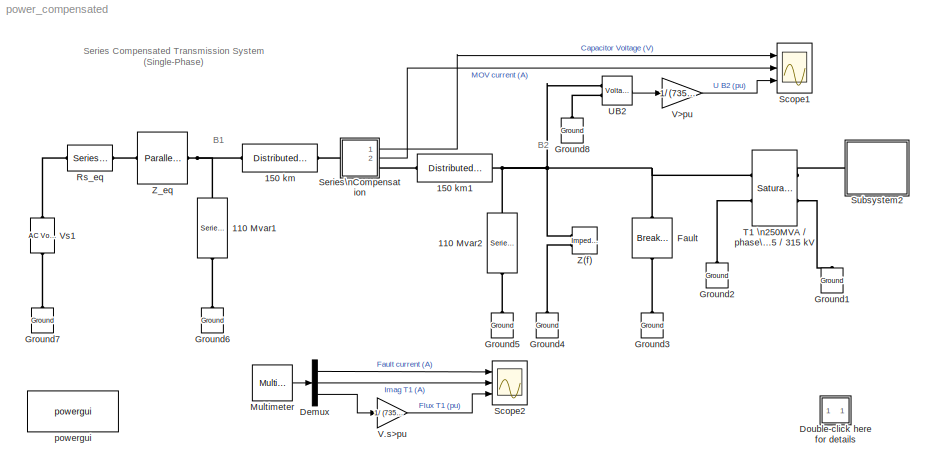
MODEL power_compensated
KIND model
BLOCK [Reference] 110 Mvar1  REF=powerlib/Elements/Series RLC Load
  ActivePower = 110e6/300
  AttributesFormatString = \\n
  CapacitivePower = 0
  InductivePower = 110e6
  LConnTagsString = a
  LeftPortType = p1
  Measurements = None
  NominalFrequency = 60
  NominalVoltage = 735000/sqrt(3)
  PhysicalDomain = powersysdomain
  Ports = [0, 0, 0, 0, 0, 1, 1]
  RConnTagsString = __new0
  RightPortType = p1
  SourceBlock = powerlib/Elements/Series RLC Load
  SourceType = Series RLC Load
  SubClassName = unknown
BLOCK [Reference] 110 Mvar2  REF=powerlib/Elements/Series RLC Load
  ActivePower = 110e6/300
  AttributesFormatString = \\n
  CapacitivePower = 0
  InductivePower = 110e6
  LConnTagsString = a
  LeftPortType = p1
  Measurements = None
  NominalFrequency = 60
  NominalVoltage = 735000/sqrt(3)
  PhysicalDomain = powersysdomain
  Ports = [0, 0, 0, 0, 0, 1, 1]
  RConnTagsString = __new0
  RightPortType = p1
  SourceBlock = powerlib/Elements/Series RLC Load
  SourceType = Series RLC Load
  SubClassName = unknown
BLOCK [Reference] 150 km  REF=powerlib/Elements/Distributed Parameters Line
  AttributesFormatString = \\n
  Capacitance = 13.41e-09
  Frequency = 60
  Inductance = 0.8674e-03
  Length = 150
  Measurements = None
  Phases = 1
  Ports = [0, 0, 0, 0, 0, 1, 1]
  Resistance = 0.011
  ShowPortLabels = on
  SourceBlock = powerlib/Elements/Distributed Parameters Line
  SourceType = Distributed Parameters Line
  x1 = [0 0 0 0; 0.0001244 0 0 0; 0.0002488 0 0 0; 0.0003733 0 0 0; 0.0004977 0 0 0; 0.0006221 0 0 0]
  x2 = [0 0 0 0; 0.0001244 0 0 0; 0.0002488 0 0 0; 0.0003733 0 0 0; 0.0004977 0 0 0; 0.0006221 0 0 0]
  x3 = [0 0 0 0; 0.0001244 0 0 0; 0.0002488 0 0 0; 0.0003733 0 0 0; 0.0004977 0 0 0; 0.0006221 0 0 0]
  x4 = [0 0 0 0; 0.0001244 0 0 0; 0.0002488 0 0 0; 0.0003733 0 0 0; 0.0004977 0 0 0; 0.0006221 0 0 0]
  x5 = 0
BLOCK [Reference] 150 km1  REF=powerlib/Elements/Distributed Parameters Line
  AttributesFormatString = \\n
  Capacitance = 13.41e-09
  Frequency = 60
  Inductance = 0.8674e-03
  Length = 150
  Measurements = None
  Phases = 1
  Ports = [0, 0, 0, 0, 0, 1, 1]
  Resistance = 0.011
  ShowPortLabels = on
  SourceBlock = powerlib/Elements/Distributed Parameters Line
  SourceType = Distributed Parameters Line
  x1 = [0 0 0 0; 0.0001244 0 0 0; 0.0002488 0 0 0; 0.0003733 0 0 0; 0.0004977 0 0 0; 0.0006221 0 0 0]
  x2 = [0 0 0 0; 0.0001244 0 0 0; 0.0002488 0 0 0; 0.0003733 0 0 0; 0.0004977 0 0 0; 0.0006221 0 0 0]
  x3 = [0 0 0 0; 0.0001244 0 0 0; 0.0002488 0 0 0; 0.0003733 0 0 0; 0.0004977 0 0 0; 0.0006221 0 0 0]
  x4 = [0 0 0 0; 0.0001244 0 0 0; 0.0002488 0 0 0; 0.0003733 0 0 0; 0.0004977 0 0 0; 0.0006221 0 0 0]
  x5 = 0
BLOCK [Demux] Demux
  Outputs = 3
  Ports = [1, 3]
BLOCK [SubSystem] Double-click here for details
  MaskDisplay = disp('?')
  MaskIconFrame = on
  MaskIconOpaque = on
  MaskIconRotate = none
  MaskIconUnits = autoscale
  MinAlgLoopOccurrences = off
  Ports = []
  RTWSystemCode = Auto
  TreatAsAtomicUnit = off
BLOCK [Reference] Fault  REF=powerlib/Elements/Breaker
  AttributesFormatString = \\n
  BreakerResistance = 0.01
  External = off
  InitialState = 0
  Measurements = Branch current
  Ports = [0, 0, 0, 0, 0, 1, 1]
  ShowPortLabels = on
  SnubberCapacitance = 0
  SnubberResistance = inf
  SourceBlock = powerlib/Elements/Breaker
  SourceType = Breaker
  SwitchingTimes = [ 3/60  9/60 ]
BLOCK [Reference] Ground1  REF=powerlib/Elements/Ground
  AttributesFormatString = \\n
  LConnTagsString = a
  LeftPortType = p1
  PhysicalDomain = powersysdomain
  Ports = [0, 0, 0, 0, 0, 1]
  RightPortType = p1
  SourceBlock = powerlib/Elements/Ground
  SourceType = Ground
  SubClassName = unknown
BLOCK [Reference] Ground2  REF=powerlib/Elements/Ground
  AttributesFormatString = \\n
  LConnTagsString = a
  LeftPortType = p1
  PhysicalDomain = powersysdomain
  Ports = [0, 0, 0, 0, 0, 1]
  RightPortType = p1
  SourceBlock = powerlib/Elements/Ground
  SourceType = Ground
  SubClassName = unknown
BLOCK [Reference] Ground3  REF=powerlib/Elements/Ground
  AttributesFormatString = \\n
  LConnTagsString = a
  LeftPortType = p1
  PhysicalDomain = powersysdomain
  Ports = [0, 0, 0, 0, 0, 1]
  RightPortType = p1
  SourceBlock = powerlib/Elements/Ground
  SourceType = Ground
  SubClassName = unknown
BLOCK [Reference] Ground4  REF=powerlib/Elements/Ground
  AttributesFormatString = \\n
  LConnTagsString = a
  LeftPortType = p1
  PhysicalDomain = powersysdomain
  Ports = [0, 0, 0, 0, 0, 1]
  RightPortType = p1
  SourceBlock = powerlib/Elements/Ground
  SourceType = Ground
  SubClassName = unknown
BLOCK [Reference] Ground5  REF=powerlib/Elements/Ground
  AttributesFormatString = \\n
  LConnTagsString = a
  LeftPortType = p1
  PhysicalDomain = powersysdomain
  Ports = [0, 0, 0, 0, 0, 1]
  RightPortType = p1
  SourceBlock = powerlib/Elements/Ground
  SourceType = Ground
  SubClassName = unknown
BLOCK [Reference] Ground6  REF=powerlib/Elements/Ground
  AttributesFormatString = \\n
  LConnTagsString = a
  LeftPortType = p1
  PhysicalDomain = powersysdomain
  Ports = [0, 0, 0, 0, 0, 1]
  RightPortType = p1
  SourceBlock = powerlib/Elements/Ground
  SourceType = Ground
  SubClassName = unknown
BLOCK [Reference] Ground7  REF=powerlib/Elements/Ground
  AttributesFormatString = \\n
  LConnTagsString = a
  LeftPortType = p1
  PhysicalDomain = powersysdomain
  Ports = [0, 0, 0, 0, 0, 1]
  RightPortType = p1
  SourceBlock = powerlib/Elements/Ground
  SourceType = Ground
  SubClassName = unknown
BLOCK [Reference] Ground8  REF=powerlib/Elements/Ground
  AttributesFormatString = \\n
  LConnTagsString = a
  LeftPortType = p1
  PhysicalDomain = powersysdomain
  Ports = [0, 0, 0, 0, 0, 1]
  RightPortType = p1
  SourceBlock = powerlib/Elements/Ground
  SourceType = Ground
  SubClassName = unknown
BLOCK [Reference] Multimeter  REF=powerlib/Measurements/Multimeter
  AttributesFormatString = \\n
  AxesSetting = [0,0.1,-100,100]
  Display = 0
  Gain = [1 1 1]
  L = 3
  OutputType = Magnitude
  PSBOutputType = 1
  PSBequivalent = 0
  PhasorSimulation = off
  Ports = [0, 1]
  SavedBlockNames = {}
  ShowPortLabels = on
  SourceBlock = powerlib/Measurements/Multimeter
  SourceType = MultimeterPSB
  Tag = PoWeRsYsTeMmEaSuReMeNt
  sel = [1 2 3]
  yselected = {'Ib: Fault','Imag: T1  250MVA // phase  735 // 315 kV','Flux: T1  250MVA // phase  735 // 315 kV'};
BLOCK [Reference] Rs_eq  REF=powerlib/Elements/Series RLC Branch
  AttributesFormatString = \\n
  Capacitance = inf
  Inductance = 0
  LConnTagsString = __new0
  LeftPortType = p1
  Measurements = None
  PhysicalDomain = powersysdomain
  Ports = [0, 0, 0, 0, 0, 1, 1]
  RConnTagsString = __new0
  Resistance = 2
  RightPortType = p1
  SourceBlock = powerlib/Elements/Series RLC Branch
  SourceType = Series RLC Branch
  SubClassName = unknown
BLOCK [Scope] Scope1
  DataFormat = Array
  DeleteFcn = simscope BlockIsBeingDestroyed
  LimitDataPoints = off
  MaxDataPoints = 100000000
  NumInputPorts = 3
  Ports = [3]
  PostSaveFcn = simscope Save
  TimeRange = 0.4
  YMax = 400000~10000~2
  YMin = -400000~-10000~-2
BLOCK [Scope] Scope2
  DataFormat = Array
  DeleteFcn = simscope BlockIsBeingDestroyed
  LimitDataPoints = off
  MaxDataPoints = 100000000
  NumInputPorts = 3
  Ports = [3]
  PostSaveFcn = simscope Save
  TimeRange = 0.4
  YMax = 10000~1000~2
  YMin = -10000~-2000~-2
  ZoomMode = xonly
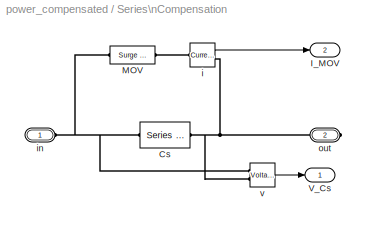
BLOCK [SubSystem] Series\nCompensation
  MaskDisplay = plot(0,0,100,100,[10 40],[50 50], [40 40],[40 60],[60 60],[40 60], [60 90],[50 50])
  MaskIconFrame = on
  MaskIconOpaque = on
  MaskIconRotate = none
  MaskIconUnits = autoscale
  MinAlgLoopOccurrences = off
  Ports = [0, 2, 0, 0, 0, 1, 1]
  RTWSystemCode = Auto
  TreatAsAtomicUnit = off
BLOCK [Reference] Series\nCompensation/Cs  REF=powerlib/Elements/Series RLC Branch
  AttributesFormatString = \\n
  Capacitance = 67.6e-6
  Inductance = 0
  LConnTagsString = __new0
  LeftPortType = p1
  Measurements = None
  PhysicalDomain = powersysdomain
  Ports = [0, 0, 0, 0, 0, 1, 1]
  RConnTagsString = __new0
  Resistance = 0
  RightPortType = p1
  SourceBlock = powerlib/Elements/Series RLC Branch
  SourceType = Series RLC Branch
  SubClassName = unknown
BLOCK [Outport] Series\nCompensation/I_MOV
  BusOutputAsStruct = off
  IconDisplay = Port number
  Port = 2
BLOCK [Reference] Series\nCompensation/MOV  REF=powerlib/Elements/Surge Arrester
  AttributesFormatString = \\n
  BreakLoop = on
  Columns = 30
  Measurements = None
  MoreParameters = off
  Ports = [0, 0, 0, 0, 0, 1, 1]
  ProtectionVoltage = 277e+03
  ReferenceCurrent = 500
  Segment1 = [.955 50]
  Segment2 = [1.0 25]
  Segment3 = [.9915 16.5]
  ShowPortLabels = on
  SourceBlock = powerlib/Elements/Surge Arrester
  SourceType = Surge Arrester
BLOCK [Outport] Series\nCompensation/V_Cs
  BusOutputAsStruct = off
  IconDisplay = Port number
BLOCK [Reference] Series\nCompensation/i  REF=powerlib/Measurements/Current Measurement
  AttributesFormatString = \\n
  OutputType = Magnitude
  PSBequivalent = 0
  PhasorSimulation = off
  Ports = [0, 1, 0, 0, 0, 1, 1]
  ShowPortLabels = on
  SourceBlock = powerlib/Measurements/Current Measurement
  SourceType = Current Measurement
  Tag = PoWeRsYsTeMmEaSuReMeNt
BLOCK [PMIOPort] Series\nCompensation/in
  Port = 1
  Side = Left
BLOCK [PMIOPort] Series\nCompensation/out
  Port = 2
  Side = Right
BLOCK [Reference] Series\nCompensation/v  REF=powerlib/Measurements/Voltage Measurement
  AttributesFormatString = \\n
  OutputType = Magnitude
  PSBequivalent = 0
  PhasorSimulation = off
  Ports = [0, 1, 0, 0, 0, 2]
  ShowPortLabels = on
  SourceBlock = powerlib/Measurements/Voltage Measurement
  SourceType = Voltage Measurement
  Tag = PoWeRsYsTeMmEaSuReMeNt
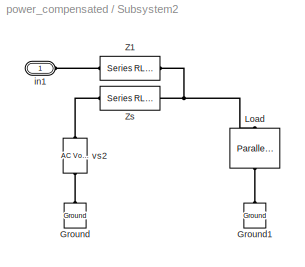
BLOCK [SubSystem] Subsystem2
  MaskDisplay = disp('315 kV\\nEquivalent')
  MaskIconFrame = on
  MaskIconOpaque = on
  MaskIconRotate = none
  MaskIconUnits = autoscale
  MinAlgLoopOccurrences = off
  Ports = [0, 0, 0, 0, 0, 1]
  RTWSystemCode = Auto
  TreatAsAtomicUnit = off
BLOCK [Reference] Subsystem2/Ground  REF=powerlib/Elements/Ground
  AttributesFormatString = \\n
  LConnTagsString = a
  LeftPortType = p1
  PhysicalDomain = powersysdomain
  Ports = [0, 0, 0, 0, 0, 1]
  RightPortType = p1
  SourceBlock = powerlib/Elements/Ground
  SourceType = Ground
  SubClassName = unknown
BLOCK [Reference] Subsystem2/Ground1  REF=powerlib/Elements/Ground
  AttributesFormatString = \\n
  LConnTagsString = a
  LeftPortType = p1
  PhysicalDomain = powersysdomain
  Ports = [0, 0, 0, 0, 0, 1]
  RightPortType = p1
  SourceBlock = powerlib/Elements/Ground
  SourceType = Ground
  SubClassName = unknown
BLOCK [Reference] Subsystem2/Load  REF=powerlib/Elements/Parallel RLC Load
  ActivePower = 200e6
  AttributesFormatString = \\n
  CapacitivePower = 50e6
  InductivePower = 0
  LConnTagsString = a
  LeftPortType = p1
  Measurements = None
  NominalFrequency = 60
  NominalVoltage = 315000/sqrt(3)
  PhysicalDomain = powersysdomain
  Ports = [0, 0, 0, 0, 0, 1, 1]
  RConnTagsString = __new0
  RightPortType = p1
  SourceBlock = powerlib/Elements/Parallel RLC Load
  SourceType = Parallel RLC Load
  SubClassName = unknown
BLOCK [Reference] Subsystem2/Z1  REF=powerlib/Elements/Series RLC Branch
  AttributesFormatString = \\n
  Capacitance = inf
  Inductance = 0.02085
  LConnTagsString = __new0
  LeftPortType = p1
  Measurements = None
  PhysicalDomain = powersysdomain
  Ports = [0, 0, 0, 0, 0, 1, 1]
  RConnTagsString = __new0
  Resistance = 0.734
  RightPortType = p1
  SourceBlock = powerlib/Elements/Series RLC Branch
  SourceType = Series RLC Branch
  SubClassName = unknown
BLOCK [Reference] Subsystem2/Zs  REF=powerlib/Elements/Series RLC Branch
  AttributesFormatString = \\n
  Capacitance = inf
  Inductance = 0.2925
  LConnTagsString = __new0
  LeftPortType = p1
  Measurements = None
  PhysicalDomain = powersysdomain
  Ports = [0, 0, 0, 0, 0, 1, 1]
  RConnTagsString = __new0
  Resistance = 11.0
  RightPortType = p1
  SourceBlock = powerlib/Elements/Series RLC Branch
  SourceType = Series RLC Branch
  SubClassName = unknown
BLOCK [PMIOPort] Subsystem2/in1
  Port = 1
  Side = Left
BLOCK [Reference] Subsystem2/vs2  REF=powerlib/Electrical\nSources/AC Voltage Source
  Amplitude = 315000/sqrt(3)*sqrt(2)
  AttributesFormatString = \\n
  Description = source block
  Frequency = 60
  Measurements = None
  Phase = 20
  Ports = [0, 0, 0, 0, 0, 1, 1]
  SampleTime = 0
  ShowPortLabels = on
  SourceBlock = powerlib/Electrical\nSources/AC Voltage Source
  SourceType = AC Voltage Source
BLOCK [Reference] T1 \n250MVA // phase\n 735 // 315 kV  REF=powerlib/Elements/Saturable Transformer
  AttributesFormatString = \\n
  CoreLoss = [1000]
  DataFile = 'hysteresis'
  Hysteresis = off
  InitialFlux = 0
  Measurements = Flux and magnetization current ( Imag )
  NominalPower = [750e6/3,60]
  Ports = [0, 0, 0, 0, 0, 2, 2]
  Saturation = [0 0 ; 0.0012 1.2; 1.0 1.45 ]
  ShowPortLabels = on
  SourceBlock = powerlib/Elements/Saturable Transformer
  SourceType = Saturable Transformer
  ThreeWindings = off
  TransfoNumber = 1
  Winding1 = [735000/sqrt(3), 0.001 ,0.15]
  Winding2 = [315000/sqrt(3), 0.001,0]
  Winding3 = [315000/sqrt(3), 0.001,0]
BLOCK [Reference] UB2  REF=powerlib/Measurements/Voltage Measurement
  AttributesFormatString = \\n
  OutputType = Magnitude
  PSBequivalent = 0
  PhasorSimulation = off
  Ports = [0, 1, 0, 0, 0, 2]
  ShowPortLabels = on
  SourceBlock = powerlib/Measurements/Voltage Measurement
  SourceType = Voltage Measurement
  Tag = PoWeRsYsTeMmEaSuReMeNt
BLOCK [Gain] V.s>pu
  Gain = 1/ (735e3/sqrt(3)*sqrt(2)/(2*pi*60))
BLOCK [Gain] V>pu
  Gain = 1/ (735e3/sqrt(3)*sqrt(2))
BLOCK [Reference] Vs1  REF=powerlib/Electrical\nSources/AC Voltage Source
  Amplitude = 735000/sqrt(3)*sqrt(2)
  AttributesFormatString = \\n
  Description = source block
  Frequency = 60
  Measurements = None
  Phase = 0
  Ports = [0, 0, 0, 0, 0, 1, 1]
  SampleTime = 0
  ShowPortLabels = on
  SourceBlock = powerlib/Electrical\nSources/AC Voltage Source
  SourceType = AC Voltage Source
BLOCK [Reference] Z(f)  REF=powerlib/Measurements/Impedance Measurement
  AttributesFormatString = \\n
  Factor = 1
  LConnTagsString = +|-
  LeftPortType = p1
  PhysicalDomain = powersysdomain
  Ports = [0, 0, 0, 0, 0, 2]
  RightPortType = p1
  SourceBlock = powerlib/Measurements/Impedance Measurement
  SourceType = Impedance Measurement
  SubClassName = unknown
BLOCK [Reference] Z_eq  REF=powerlib/Elements/Parallel RLC Branch
  AttributesFormatString = \\n
  Capacitance = 117.84e-06
  Inductance = .026525
  LConnTagsString = a
  LeftPortType = p1
  Measurements = None
  PhysicalDomain = powersysdomain
  Ports = [0, 0, 0, 0, 0, 1, 1]
  RConnTagsString = __new0
  Resistance = 180.1
  RightPortType = p1
  SourceBlock = powerlib/Elements/Parallel RLC Branch
  SourceType = Parallel RLC Branch
  SubClassName = unknown
BLOCK [Reference] powergui  REF=powerlib/powergui
  DisplayStyle = off
  Frange = 0:500
  FreqAxis = off
  MaxFrequency = 1000
  Ports = []
  Priority = 2
  RmsSteady = 1
  ShowPortLabels = on
  SourceBlock = powerlib/powergui
  SourceType = PSB option menu block
  StartTime = 0.0
  Ts = 0
  Xlog = off
  Ylog = off
  ZoomFFT = on
  cycles = 2
  display = off
  echomessages = off
  frequency = 60
  frequencyindice = 1
  frequencyindicesteady = 1
  fundamental = 60
  methode = off
  save = off
  variable = ZData
ANNOTATION (root): B1
ANNOTATION (root): B2
ANNOTATION (root): Series Compensated Transmission System\n(Single-Phase)
ANNOTATION Double-click here for details: A 735 kV, 300 km line is used to transmit power from bus B1 (735 kV equivalent system) to bus B2 (315 kV equivalent). \nIn order to simplify, only one phase of the system has been represented. \n(A detailed simulation of a three-phase series compensated network is presented in demo power_3phseries and explained in the case studies\nsection of the user's manual.)\n\nIn order to increase the transmi...<+630ch>
ANNOTATION Double-click here for details: Circuit Description
ANNOTATION Double-click here for details: Demonstration
ANNOTATION Double-click here for details: Frequency Analysis
ANNOTATION Double-click here for details: G. Sybille (Hydro-Quebec)
ANNOTATION Double-click here for details: In order to understand the transient behavior of this series-compensated network, a frequency analysis is first preformed by measuring the Impedance at node B2.\nThis measurement is performed by the Impedance Measurement block connected at node B2. \nOpen the Powergui and in the Tools menu select 'Impedance vs Frequency Mesurement'. Click on Display to compute and display the impedance for the 0 -...<+436ch>
ANNOTATION Double-click here for details: Start the simulatiom and observe waveforms on the two Scopes.\nAt t = 3 cycles, a line-to-ground fault is applied and the fault current reaches 10 kA (trace 1 of Scope2).\nDuring the fault, the MOV conducts at every half cycle (trace 2 of Scope1) and the voltage across the capacitor (trace 1 of Scope1) is limited to 263 kV.\nAt t = 9 cycles, the fault is cleared. The 15 Hz mode is clearly seen on ...<+328ch>
ANNOTATION Double-click here for details: This demonstration ilustrates frequency-domain and time-domain analysis of\na series-compensated transmission system
ANNOTATION Double-click here for details: Time Domain Simulation - Fault at Bus B2
ANNOTATION Double-click here for details: You now study the transient performance of this circuit when a 6-cycle fault is applied at node B2.\nFault is simulated by the Breaker block. Switching times are defined in the Breaker block menu (closing at t = 3 cycles and opening at t = 9 cycles).
LINE Demux:1 -> Scope2:1
LINE Demux:2 -> Scope2:2
LINE Demux:3 -> V.s>pu:1
LINE Multimeter:1 -> Demux:1
LINE Series\nCompensation/i:1 -> Series\nCompensation/I_MOV:1
LINE Series\nCompensation/v:1 -> Series\nCompensation/V_Cs:1
LINE Series\nCompensation:1 -> Scope1:1
LINE Series\nCompensation:2 -> Scope1:2
LINE UB2:1 -> V>pu:1
LINE V.s>pu:1 -> Scope2:3
LINE V>pu:1 -> Scope1:3
PLINE 110 Mvar1:LConn1 -- Ground6:LConn1
PNET net1: 110 Mvar1:RConn1 -- 150 km:LConn1 -- Z_eq:RConn1
PLINE 110 Mvar2:LConn1 -- Ground5:LConn1
PNET net2: 110 Mvar2:RConn1 -- 150 km1:RConn1 -- Fault:LConn1 -- T1 \n250MVA // phase\n 735 // 315 kV:LConn1 -- UB2:LConn1 -- Z(f):LConn1
PLINE 150 km1:LConn1 -- Series\nCompensation:RConn1
PLINE 150 km:RConn1 -- Series\nCompensation:LConn1
PLINE Fault:RConn1 -- Ground3:LConn1
PLINE Ground1:LConn1 -- T1 \n250MVA // phase\n 735 // 315 kV:RConn2
PLINE Ground2:LConn1 -- T1 \n250MVA // phase\n 735 // 315 kV:LConn2
PLINE Ground4:LConn1 -- Z(f):LConn2
PLINE Ground7:LConn1 -- Vs1:LConn1
PLINE Ground8:LConn1 -- UB2:LConn2
PLINE Rs_eq:LConn1 -- Vs1:RConn1
PLINE Rs_eq:RConn1 -- Z_eq:LConn1
PNET net3: Series\nCompensation/Cs:LConn1 -- Series\nCompensation/MOV:LConn1 -- Series\nCompensation/in:RConn1 -- Series\nCompensation/v:LConn1
PNET net4: Series\nCompensation/Cs:RConn1 -- Series\nCompensation/i:RConn1 -- Series\nCompensation/out:RConn1 -- Series\nCompensation/v:LConn2
PLINE Series\nCompensation/MOV:RConn1 -- Series\nCompensation/i:LConn1
PLINE Subsystem2/Ground1:LConn1 -- Subsystem2/Load:RConn1
PLINE Subsystem2/Ground:LConn1 -- Subsystem2/vs2:LConn1
PNET net5: Subsystem2/Load:LConn1 -- Subsystem2/Z1:RConn1 -- Subsystem2/Zs:RConn1
PLINE Subsystem2/Z1:LConn1 -- Subsystem2/in1:RConn1
PLINE Subsystem2/Zs:LConn1 -- Subsystem2/vs2:RConn1
PLINE Subsystem2:LConn1 -- T1 \n250MVA // phase\n 735 // 315 kV:RConn1
note: PNET lines group multi-terminal physical nets as a canonical sorted terminal list (undirected conserving connections); 2-terminal nets keep the pairwise PLINE form
